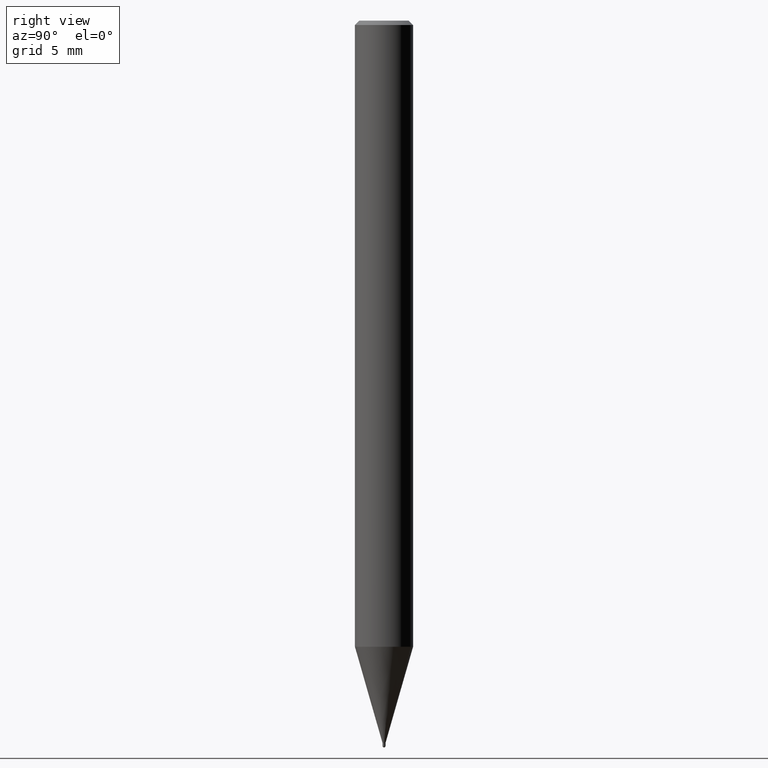
[diagram: clean part render]
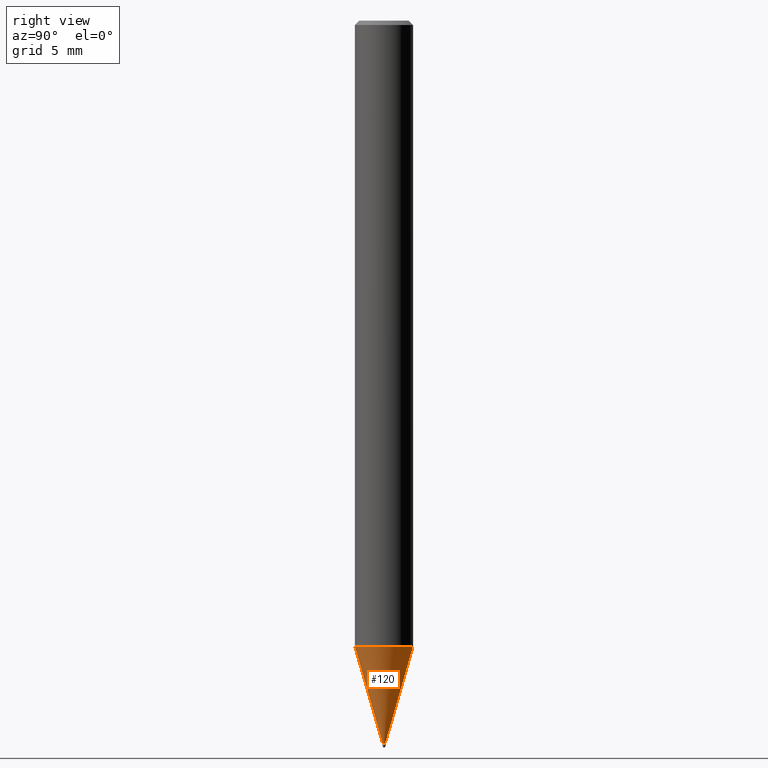
[diagram: same view with one face highlighted and labeled with its STEP entity id]
A machine part, right view. The second image highlights one B-rep face of the part: STEP entity #120.
In plain terms, the highlighted conical surface has half-angle 16 deg.
Its self-contained STEP definition (entity closure, byte-faithful):
#88=VERTEX_POINT('',#214);
#96=EDGE_CURVE('',#102,#88,#224,.T.);
#102=VERTEX_POINT('',#230);
#120=ADVANCED_FACE('',(#249),#250,.T.);
#122=EDGE_CURVE('',#128,#88,#252,.T.);
#128=VERTEX_POINT('',#258);
#134=EDGE_CURVE('',#102,#188,#266,.T.);
#150=EDGE_CURVE('',#188,#128,#285,.T.);
#188=VERTEX_POINT('',#328);
#214=CARTESIAN_POINT('',(2.44915147732706E-016,-1.99995,-43.074));
#224=CIRCLE('',#357,1.99995);
#230=CARTESIAN_POINT('',(0.0,1.99995,-43.074));
#249=FACE_OUTER_BOUND('',#390,.T.);
#250=CONICAL_SURFACE('',#391,1.04995,0.279256176986881);
#252=LINE('',#394,#395);
#258=CARTESIAN_POINT('',(1.22399405064546E-017,-0.09995,-49.7));
#266=LINE('',#412,#413);
#285=CIRCLE('',#437,0.09995);
#328=CARTESIAN_POINT('',(0.0,0.09995,-49.7));
#357=AXIS2_PLACEMENT_3D('',#515,#516,#517);
#390=EDGE_LOOP('',(#541,#542,#543,#544));
#391=AXIS2_PLACEMENT_3D('',#545,#546,#547);
#394=CARTESIAN_POINT('',(1.28577544119581E-016,-1.04995,-46.387));
#395=VECTOR('',#548,1.0);
#412=CARTESIAN_POINT('',(-1.28577544119581E-016,1.04995,-46.387));
#413=VECTOR('',#569,1.0);
#437=AXIS2_PLACEMENT_3D('',#594,#595,#596);
#515=CARTESIAN_POINT('',(0.0,0.0,-43.074));
#516=DIRECTION('',(0.0,0.0,-1.0));
#517=DIRECTION('',(0.0,1.0,0.0));
#541=ORIENTED_EDGE('',*,*,#134,.F.);
#542=ORIENTED_EDGE('',*,*,#96,.T.);
#543=ORIENTED_EDGE('',*,*,#122,.F.);
#544=ORIENTED_EDGE('',*,*,#150,.F.);
#545=CARTESIAN_POINT('',(0.0,0.0,-46.387));
#546=DIRECTION('',(-0.0,-0.0,1.0));
#547=DIRECTION('',(0.0,1.0,0.0));
#548=DIRECTION('',(3.37551373444795E-017,-0.275640717028123,0.961260732120179));
#569=DIRECTION('',(3.37551373444795E-017,-0.275640717028123,-0.961260732120179));
#594=CARTESIAN_POINT('',(0.0,0.0,-49.7));
#595=DIRECTION('',(0.0,0.0,-1.0));
#596=DIRECTION('',(0.0,1.0,0.0));